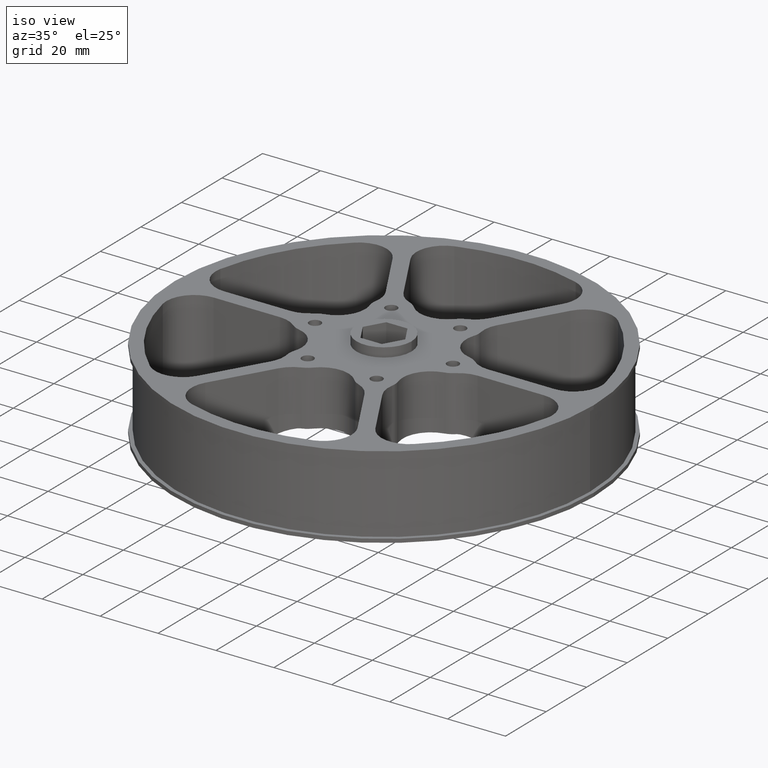
[diagram: clean part render]
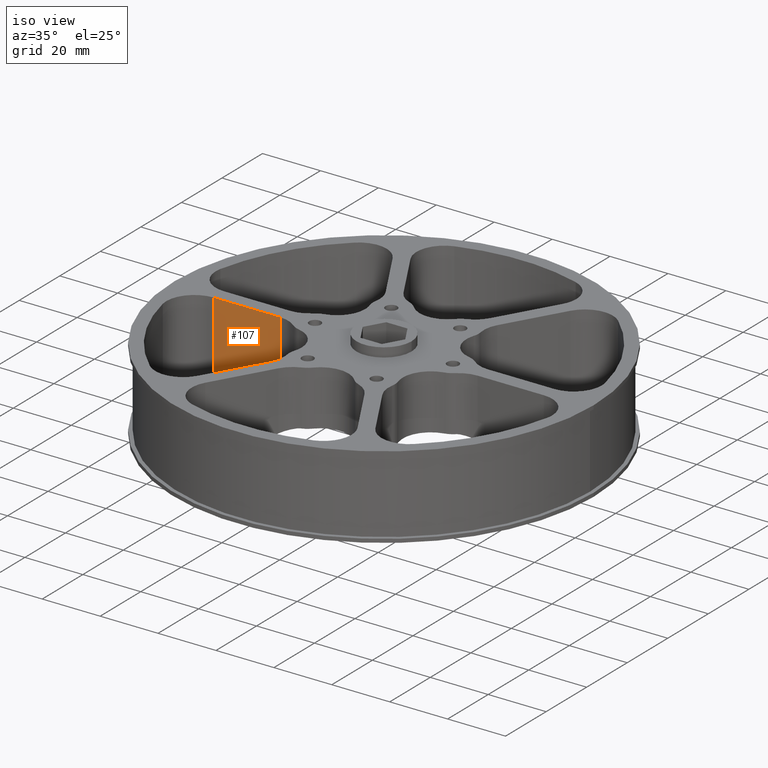
[diagram: same view with one face highlighted and labeled with its STEP entity id]
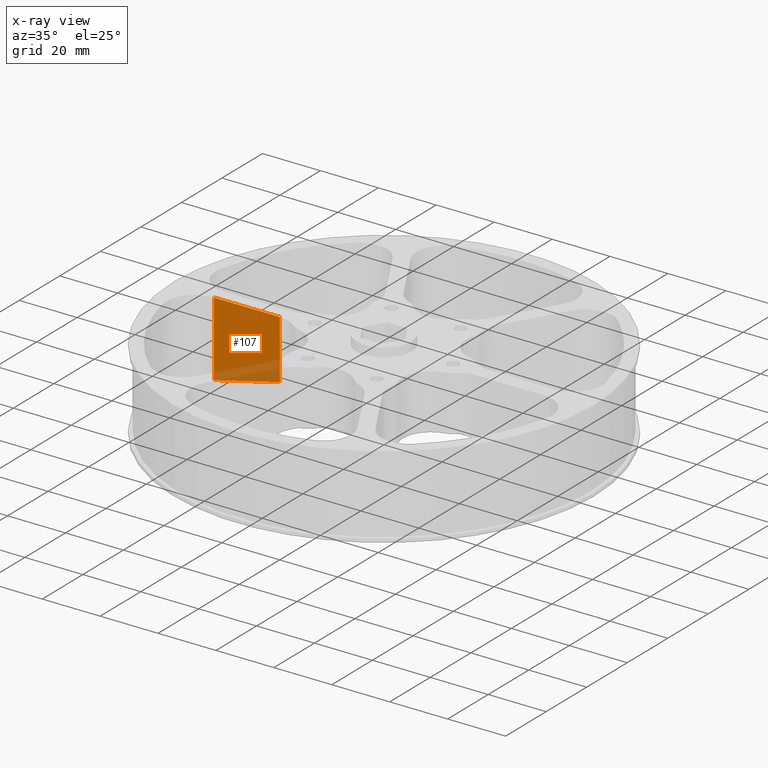
[diagram: x-ray of the same camera — body ghosted, the highlighted face saturated]
A machine part, iso view. The second image highlights one B-rep face of the part: STEP entity #107.
The next image is the same camera in x-ray: the body ghosted, the highlighted face saturated — about 21% of this face is hidden behind the body in this view.
In plain terms, the highlighted planar face has unit normal (0, 1, 0).
Its self-contained STEP definition (entity closure, byte-faithful):
#107 = ADVANCED_FACE ( 'NONE', ( #3240 ), #4103, .F. ) ;
#154 = DIRECTION ( 'NONE',  ( 0.0000000000000000000, 0.0000000000000000000, -1.000000000000000000 ) ) ;
#479 = VERTEX_POINT ( 'NONE', #1840 ) ;
#587 = EDGE_CURVE ( 'NONE', #2163, #2236, #3445, .T. ) ;
#600 = DIRECTION ( 'NONE',  ( -0.0000000000000000000, -0.0000000000000000000, 1.000000000000000000 ) ) ;
#616 = CARTESIAN_POINT ( 'NONE',  ( -1.345544115262074847, -0.09999999999998834821, 1.125000000000000000 ) ) ;
#629 = CARTESIAN_POINT ( 'NONE',  ( -2.244242633941349041, -0.09999999999998318567, 0.006009615384616180320 ) ) ;
#778 = DIRECTION ( 'NONE',  ( -1.000000000000000000, 5.800299274326415471E-15, 0.0000000000000000000 ) ) ;
#860 = VECTOR ( 'NONE', #600, 39.37007874015748143 ) ;
#883 = CARTESIAN_POINT ( 'NONE',  ( -1.345544115262074847, -0.09999999999998840372, 0.3246983252277153009 ) ) ;
#1192 = LINE ( 'NONE', #629, #2974 ) ;
#1355 = ORIENTED_EDGE ( 'NONE', *, *, #2651, .T. ) ;
#1479 = CARTESIAN_POINT ( 'NONE',  ( -2.244242633941349041, -0.09999999999998318567, 0.1090217662803020515 ) ) ;
#1491 = CARTESIAN_POINT ( 'NONE',  ( -1.944687223175657564, -0.09999999999998493427, 0.1809588998699580287 ) ) ;
#1495 = ORIENTED_EDGE ( 'NONE', *, *, #587, .T. ) ;
#1498 = DIRECTION ( 'NONE',  ( 5.800299274326415471E-15, 1.000000000000000000, 0.0000000000000000000 ) ) ;
#1504 = LINE ( 'NONE', #3812, #4182 ) ;
#1840 = CARTESIAN_POINT ( 'NONE',  ( -2.244242633941349041, -0.09999999999998318567, 1.125000000000000000 ) ) ;
#1949 = B_SPLINE_CURVE_WITH_KNOTS ( 'NONE', 3,
 ( #883, #3311, #1491, #1479 ),
 .UNSPECIFIED., .F., .F.,
 ( 4, 4 ),
 ( 0.03513703345844007564, 0.05857701023617150476 ),
 .UNSPECIFIED. ) ;
#2163 = VERTEX_POINT ( 'NONE', #4244 ) ;
#2236 = VERTEX_POINT ( 'NONE', #616 ) ;
#2440 = VERTEX_POINT ( 'NONE', #2537 ) ;
#2532 = ORIENTED_EDGE ( 'NONE', *, *, #3832, .T. ) ;
#2537 = CARTESIAN_POINT ( 'NONE',  ( -2.244242633941349041, -0.09999999999998318567, 0.1090217662803020515 ) ) ;
#2651 = EDGE_CURVE ( 'NONE', #2236, #479, #1504, .T. ) ;
#2744 = EDGE_CURVE ( 'NONE', #2163, #2440, #1949, .T. ) ;
#2974 = VECTOR ( 'NONE', #154, 39.37007874015748143 ) ;
#3124 = DIRECTION ( 'NONE',  ( -1.000000000000000000, 5.800299274326415471E-15, 0.0000000000000000000 ) ) ;
#3146 = EDGE_LOOP ( 'NONE', ( #1355, #2532, #3721, #1495 ) ) ;
#3240 = FACE_OUTER_BOUND ( 'NONE', #3146, .T. ) ;
#3311 = CARTESIAN_POINT ( 'NONE',  ( -1.645128194335167438, -0.09999999999998665512, 0.2528809853477114733 ) ) ;
#3445 = LINE ( 'NONE', #4262, #860 ) ;
#3721 = ORIENTED_EDGE ( 'NONE', *, *, #2744, .F. ) ;
#3766 = CARTESIAN_POINT ( 'NONE',  ( -2.673130187626484133, -0.09999999999998070155, 0.0000000000000000000 ) ) ;
#3812 = CARTESIAN_POINT ( 'NONE',  ( -2.673130187626484133, -0.09999999999998070155, 1.125000000000000000 ) ) ;
#3832 = EDGE_CURVE ( 'NONE', #479, #2440, #1192, .T. ) ;
#3924 = AXIS2_PLACEMENT_3D ( 'NONE', #3766, #1498, #778 ) ;
#4103 = PLANE ( 'NONE',  #3924 ) ;
#4182 = VECTOR ( 'NONE', #3124, 39.37007874015748143 ) ;
#4244 = CARTESIAN_POINT ( 'NONE',  ( -1.345544115262074847, -0.09999999999998840372, 0.3246983252277153009 ) ) ;
#4262 = CARTESIAN_POINT ( 'NONE',  ( -1.345544115262074847, -0.09999999999998834821, 0.0000000000000000000 ) ) ;